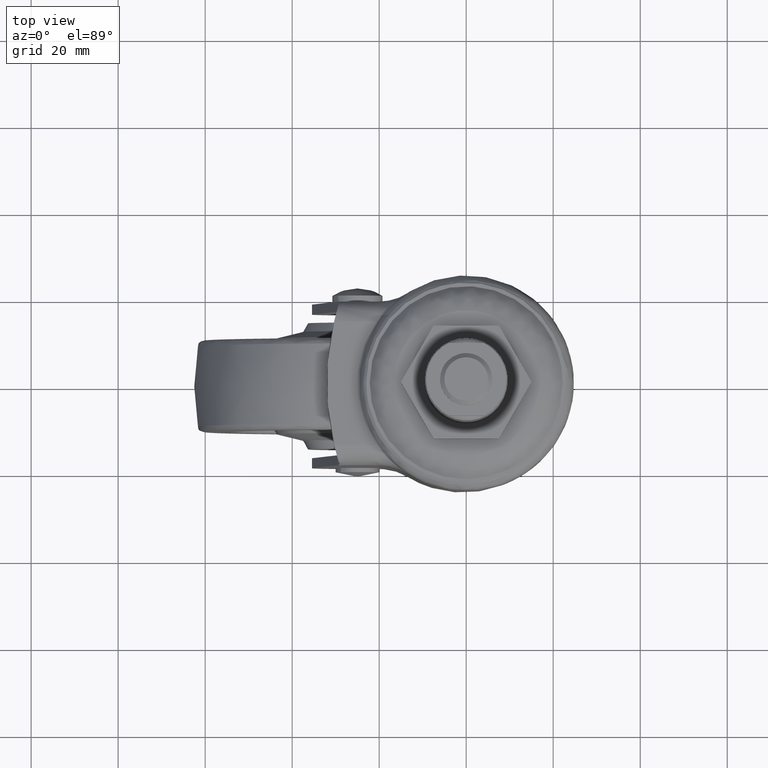
[diagram: clean part render]
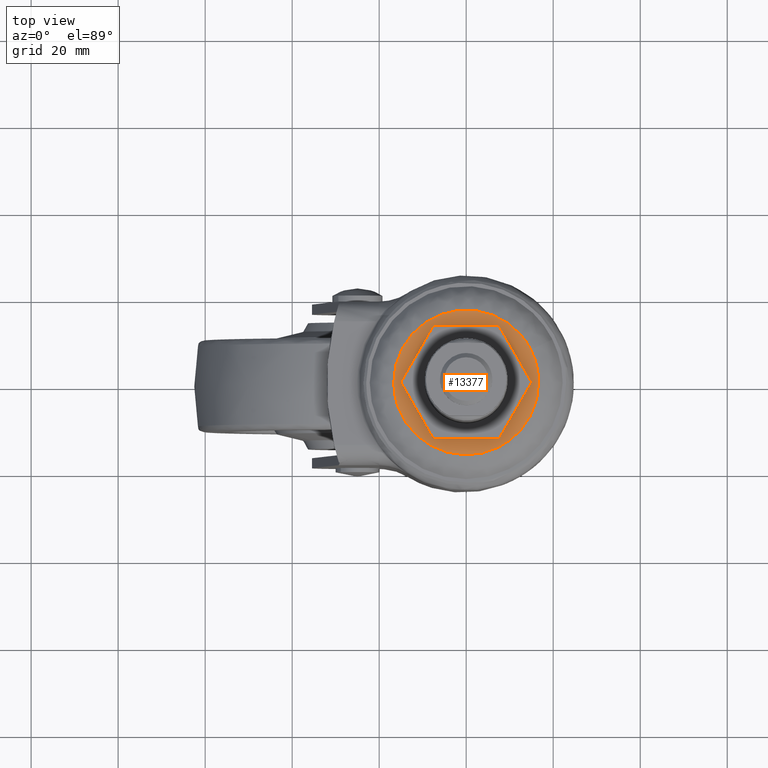
[diagram: same view with one face highlighted and labeled with its STEP entity id]
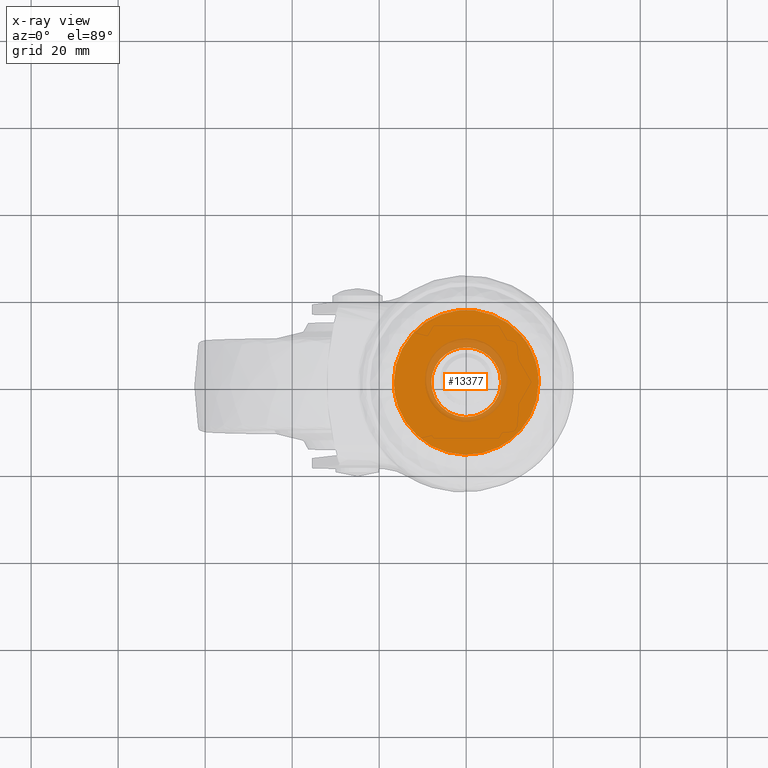
[diagram: x-ray of the same camera — body ghosted, the highlighted face saturated]
A machine part, top view. The second image highlights one B-rep face of the part: STEP entity #13377.
The next image is the same camera in x-ray: the body ghosted, the highlighted face saturated — about 13% of this face is hidden behind the body in this view.
In plain terms, the highlighted face is a freeform B-spline surface patch.
Its self-contained STEP definition (entity closure, byte-faithful):
#5943=CARTESIAN_POINT('',(5.165985005311550,-6.108502627930277,-1.999673999999895));
#5944=VERTEX_POINT('',#5943);
#5950=CARTESIAN_POINT('',(8.000075000000091,0.0,-1.999673999999895));
#5951=VERTEX_POINT('',#5950);
#5952=CARTESIAN_POINT('',(5.165985005311550,-6.108502627930277,-1.999673999999895));
#5953=CARTESIAN_POINT('',(5.802063333816039,-5.571144603495037,-1.999673999999893));
#5954=CARTESIAN_POINT('',(6.640083577364876,-4.600404735287971,-1.999673999999902));
#5955=CARTESIAN_POINT('',(7.354350466399572,-3.211487389648535,-1.999673999999890));
#5956=CARTESIAN_POINT('',(7.849291247781828,-1.809891773345544,-1.999673999999903));
#5957=CARTESIAN_POINT('',(8.000387689239524,-0.760253700055411,-1.999673999999890));
#5958=CARTESIAN_POINT('',(8.000075000000091,0.0,-1.999673999999895));
#5959=B_SPLINE_CURVE_WITH_KNOTS('',3,(#5952,#5953,#5954,#5955,#5956,#5957,#5958),.UNSPECIFIED.,.F.,.U.,(4,1,1,1,4),(0.000000038263013,2.497858925806447,3.801047734723142,4.669886506162069,6.950531590722099),.UNSPECIFIED.);
#5960=EDGE_CURVE('',#5944,#5951,#5959,.T.);
#5962=CARTESIAN_POINT('',(-0.000001375303884,8.000074999999974,-1.999673999999895));
#5963=VERTEX_POINT('',#5962);
#5964=CARTESIAN_POINT('',(8.000075000000091,0.0,-1.999673999999895));
#5965=CARTESIAN_POINT('',(8.000171130375703,0.589057846554607,-1.999673999999894));
#5966=CARTESIAN_POINT('',(7.883859322220361,1.636211634651159,-1.999673999999899));
#5967=CARTESIAN_POINT('',(7.348364074224894,3.327190721663595,-1.999673999999894));
#5968=CARTESIAN_POINT('',(6.450430262706275,4.867930351937646,-1.999673999999895));
#5969=CARTESIAN_POINT('',(5.277553636888506,6.069630629138906,-1.999673999999894));
#5970=CARTESIAN_POINT('',(4.049340631640080,6.945980750581210,-1.999673999999896));
#5971=CARTESIAN_POINT('',(2.952028640774533,7.473238483574030,-1.999673999999894));
#5972=CARTESIAN_POINT('',(1.538023045742504,7.892672013094638,-1.999673999999896));
#5973=CARTESIAN_POINT('',(0.621792185011902,8.000227632885485,-1.999673999999897));
#5974=CARTESIAN_POINT('',(-0.000001375303884,8.000074999999974,-1.999673999999895));
#5975=B_SPLINE_CURVE_WITH_KNOTS('',3,(#5964,#5965,#5966,#5967,#5968,#5969,#5970,#5971,#5972,#5973,#5974),.UNSPECIFIED.,.F.,.U.,(4,1,1,1,1,1,1,1,4),(0.000000129361204,1.767167869227734,3.141642900196846,5.301558444038050,7.068690274072943,8.148629056418496,9.817638335219833,10.701223084504379,12.566568048619841),.UNSPECIFIED.);
#5976=EDGE_CURVE('',#5951,#5963,#5975,.T.);
#5978=CARTESIAN_POINT('',(-8.000075000000091,0.0,-1.999673999999895));
#5979=VERTEX_POINT('',#5978);
#5980=CARTESIAN_POINT('',(-0.000001375303884,8.000074999999974,-1.999673999999895));
#5981=CARTESIAN_POINT('',(-0.490876004971511,8.000117267505194,-1.999673999999891));
#5982=CARTESIAN_POINT('',(-1.538066414423781,7.903404436823101,-1.999673999999905));
#5983=CARTESIAN_POINT('',(-3.241610603835852,7.398298032588091,-1.999673999999887));
#5984=CARTESIAN_POINT('',(-4.753751015877379,6.516910101511018,-1.999673999999899));
#5985=CARTESIAN_POINT('',(-6.125418436734850,5.242561441249048,-1.999673999999895));
#5986=CARTESIAN_POINT('',(-7.161477064312384,3.752495941708268,-1.999673999999895));
#5987=CARTESIAN_POINT('',(-7.850556596284996,1.898027610456960,-1.999673999999893));
#5988=CARTESIAN_POINT('',(-8.000203012892976,0.621784788949303,-1.999673999999897));
#5989=CARTESIAN_POINT('',(-8.000075000000091,0.0,-1.999673999999895));
#5990=B_SPLINE_CURVE_WITH_KNOTS('',3,(#5980,#5981,#5982,#5983,#5984,#5985,#5986,#5987,#5988,#5989),.UNSPECIFIED.,.F.,.U.,(4,1,1,1,1,1,1,4),(0.000000129840116,1.472633212438655,3.141642513036789,5.301557790458134,6.675988261673551,8.737678758053862,10.701221763743840,12.566566498322111),.UNSPECIFIED.);
#5991=EDGE_CURVE('',#5963,#5979,#5990,.T.);
#5993=CARTESIAN_POINT('',(-5.803049049211932,-5.506888072617745,-1.999673999999895));
#5994=VERTEX_POINT('',#5993);
#5995=CARTESIAN_POINT('',(-8.000075000000091,0.0,-1.999673999999895));
#5996=CARTESIAN_POINT('',(-8.000196325002094,-0.601065723515738,-1.999673999999893));
#5997=CARTESIAN_POINT('',(-7.874696705966300,-1.708212281931184,-1.999673999999899));
#5998=CARTESIAN_POINT('',(-7.414461634043668,-3.095612715097273,-1.999673999999895));
#5999=CARTESIAN_POINT('',(-6.755112702953381,-4.360686417927250,-1.999673999999894));
#6000=CARTESIAN_POINT('',(-6.195092084067479,-5.093909806031475,-1.999673999999899));
#6001=CARTESIAN_POINT('',(-5.803049049211932,-5.506888072617745,-1.999673999999895));
#6002=B_SPLINE_CURVE_WITH_KNOTS('',3,(#5995,#5996,#5997,#5998,#5999,#6000,#6001),.UNSPECIFIED.,.F.,.U.,(4,1,1,1,4),(0.000000031786908,1.803175023101227,3.321619019476356,4.365570646427946,6.073838326146219),.UNSPECIFIED.);
#6003=EDGE_CURVE('',#5979,#5994,#6002,.T.);
#6109=CARTESIAN_POINT('',(0.000001375303744,-8.000074999999972,-1.999673999999895));
#6110=VERTEX_POINT('',#6109);
#6111=CARTESIAN_POINT('',(-5.803049049211932,-5.506888072617745,-1.999673999999895));
#6112=CARTESIAN_POINT('',(-5.337634813026108,-5.997630133745893,-1.999673999999896));
#6113=CARTESIAN_POINT('',(-4.413291724669198,-6.751964170340528,-1.999673999999893));
#6114=CARTESIAN_POINT('',(-2.893545321320089,-7.510370368346030,-1.999673999999895));
#6115=CARTESIAN_POINT('',(-1.454082436151916,-7.912783256721776,-1.999673999999898));
#6116=CARTESIAN_POINT('',(-0.473425173571756,-8.000117285931061,-1.999673999999893));
#6117=CARTESIAN_POINT('',(0.000001375303744,-8.000074999999972,-1.999673999999895));
#6118=B_SPLINE_CURVE_WITH_KNOTS('',3,(#6111,#6112,#6113,#6114,#6115,#6116,#6117),.UNSPECIFIED.,.F.,.U.,(4,1,1,1,4),(0.000000038177278,2.028978529522959,3.550694049614949,5.072449240782275,6.492730315682900),.UNSPECIFIED.);
#6119=EDGE_CURVE('',#5994,#6110,#6118,.T.);
#6121=CARTESIAN_POINT('',(0.000001375303744,-8.000074999999972,-1.999673999999895));
#6122=CARTESIAN_POINT('',(0.555761241505494,-8.000167998020817,-1.999673999999887));
#6123=CARTESIAN_POINT('',(1.462481167058626,-7.905183732173049,-1.999673999999903));
#6124=CARTESIAN_POINT('',(2.760521091270947,-7.540035322927406,-1.999673999999891));
#6125=CARTESIAN_POINT('',(3.965215296289408,-6.998750377217181,-1.999673999999900));
#6126=CARTESIAN_POINT('',(4.764012328366528,-6.448541982690291,-1.999673999999883));
#6127=CARTESIAN_POINT('',(5.165985005311550,-6.108502627930277,-1.999673999999895));
#6128=B_SPLINE_CURVE_WITH_KNOTS('',3,(#6121,#6122,#6123,#6124,#6125,#6126,#6127),.UNSPECIFIED.,.F.,.U.,(4,1,1,1,4),(0.000000028270379,1.667265740962521,2.720288803800771,4.036525161955504,5.616037240781362),.UNSPECIFIED.);
#6129=EDGE_CURVE('',#6110,#5944,#6128,.T.);
#8249=CARTESIAN_POINT('',(7.464169488051621,-14.879646796466250,-1.999674000000001));
#8250=VERTEX_POINT('',#8249);
#8262=CARTESIAN_POINT('',(-16.646853000000100,0.0,-1.999674000000000));
#8263=VERTEX_POINT('',#8262);
#8264=CARTESIAN_POINT('',(7.464169488051621,-14.879646796466250,-1.999674000000001));
#8265=CARTESIAN_POINT('',(6.281028401867387,-15.473486214217051,-1.999674000000002));
#8266=CARTESIAN_POINT('',(4.399390133511711,-16.150611946194459,-1.999674000000003));
#8267=CARTESIAN_POINT('',(1.522301196110512,-16.634806394401210,-1.999673999999995));
#8268=CARTESIAN_POINT('',(-0.558275208539770,-16.683950445967479,-1.999674000000016));
#8269=CARTESIAN_POINT('',(-2.842744469446358,-16.446367957927109,-1.999673999999981));
#8270=CARTESIAN_POINT('',(-5.085572799959073,-15.928618162467290,-1.999674000000026));
#8271=CARTESIAN_POINT('',(-7.911673203492544,-14.767424414411069,-1.999673999999980));
#8272=CARTESIAN_POINT('',(-10.244135104117010,-13.223508688282839,-1.999674000000027));
#8273=CARTESIAN_POINT('',(-12.116473279684749,-11.472831765755149,-1.999673999999969));
#8274=CARTESIAN_POINT('',(-13.768430574079391,-9.511207940025779,-1.999674000000033));
#8275=CARTESIAN_POINT('',(-15.192197443576720,-7.052046922179762,-1.999673999999971));
#8276=CARTESIAN_POINT('',(-16.353034734707371,-3.706391938335754,-1.999674000000049));
#8277=CARTESIAN_POINT('',(-16.647281077156041,-1.412070753281534,-1.999673999999970));
#8278=CARTESIAN_POINT('',(-16.646853000000100,0.0,-1.999674000000000));
#8279=B_SPLINE_CURVE_WITH_KNOTS('',3,(#8264,#8265,#8266,#8267,#8268,#8269,#8270,#8271,#8272,#8273,#8274,#8275,#8276,#8277,#8278),.UNSPECIFIED.,.F.,.U.,(4,1,1,1,1,1,1,1,1,1,1,1,4),(0.000000143889956,3.971326491671213,5.957021361272297,8.736999439661833,10.193166396079070,12.840775639046710,15.620706851893740,19.327244168391179,21.180583233462730,23.298650060753189,27.005267986797289,29.652871863886599,33.888954238775980),.UNSPECIFIED.);
#8280=EDGE_CURVE('',#8250,#8263,#8279,.T.);
#8282=CARTESIAN_POINT('',(14.879646795456541,7.464169487380882,-1.999674000000001));
#8283=VERTEX_POINT('',#8282);
#8284=CARTESIAN_POINT('',(-16.646853000000100,0.0,-1.999674000000000));
#8285=CARTESIAN_POINT('',(-16.646886226717040,0.870237901041892,-1.999673999999999));
#8286=CARTESIAN_POINT('',(-16.491919812427739,2.842840945014603,-1.999674000000004));
#8287=CARTESIAN_POINT('',(-15.827210132004030,5.380905362746329,-1.999673999999989));
#8288=CARTESIAN_POINT('',(-14.870752157248040,7.563219640735198,-1.999674000000016));
#8289=CARTESIAN_POINT('',(-13.758209212223250,9.470830718631774,-1.999673999999976));
#8290=CARTESIAN_POINT('',(-12.024759801425850,11.662896243143321,-1.999674000000003));
#8291=CARTESIAN_POINT('',(-9.808184914304984,13.561253847947590,-1.999674000000061));
#8292=CARTESIAN_POINT('',(-7.500635688185713,14.914391910004330,-1.999673999999956));
#8293=CARTESIAN_POINT('',(-4.983986361426354,15.978049215348310,-1.999674000000023));
#8294=CARTESIAN_POINT('',(-1.964657868328663,16.659659639289469,-1.999674000000010));
#8295=CARTESIAN_POINT('',(0.950466912393135,16.681863604098051,-1.999673999999990));
#8296=CARTESIAN_POINT('',(3.424030486488080,16.336510297516920,-1.999674000000021));
#8297=CARTESIAN_POINT('',(5.839707888883117,15.683228399997200,-1.999673999999952));
#8298=CARTESIAN_POINT('',(8.422193461273247,14.461440960409790,-1.999674000000024));
#8299=CARTESIAN_POINT('',(10.696210331572910,12.839023556503131,-1.999673999999999));
#8300=CARTESIAN_POINT('',(12.948723737684031,10.649419104089819,-1.999674000000001));
#8301=CARTESIAN_POINT('',(14.229721801828500,8.760901610266572,-1.999673999999999));
#8302=CARTESIAN_POINT('',(14.879646795456541,7.464169487380882,-1.999674000000001));
#8303=B_SPLINE_CURVE_WITH_KNOTS('',3,(#8284,#8285,#8286,#8287,#8288,#8289,#8290,#8291,#8292,#8293,#8294,#8295,#8296,#8297,#8298,#8299,#8300,#8301,#8302),.UNSPECIFIED.,.F.,.U.,(4,1,1,1,1,1,1,1,1,1,1,1,1,1,1,1,4),(0.000000027961832,2.610733674667358,5.917785690837008,7.832401889273797,9.747015776034992,12.531887840621939,16.187011692284241,18.449728581801569,20.538409213893349,24.367466595000959,27.674548043015850,29.241039963048699,31.851844320082201,35.158882300460093,37.769723343511899,40.206473019157443,44.557784641251423),.UNSPECIFIED.);
#8304=EDGE_CURVE('',#8263,#8283,#8303,.T.);
#8388=CARTESIAN_POINT('',(16.646853000000100,0.0,-1.999674000000000));
#8389=VERTEX_POINT('',#8388);
#8390=CARTESIAN_POINT('',(14.879646795456541,7.464169487380882,-1.999674000000001));
#8391=CARTESIAN_POINT('',(15.313543717760830,6.599407347728249,-1.999673999999996));
#8392=CARTESIAN_POINT('',(15.910441002543060,5.094847367429257,-1.999674000000005));
#8393=CARTESIAN_POINT('',(16.505859971936871,2.579988049327645,-1.999673999999998));
#8394=CARTESIAN_POINT('',(16.646933760137252,0.967512424238850,-1.999674000000002));
#8395=CARTESIAN_POINT('',(16.646853000000100,0.0,-1.999674000000000));
#8396=B_SPLINE_CURVE_WITH_KNOTS('',3,(#8390,#8391,#8392,#8393,#8394,#8395),.UNSPECIFIED.,.F.,.U.,(4,1,1,4),(8.560963E-009,2.902525051724068,4.837541379961181,7.740066423124514),.UNSPECIFIED.);
#8397=EDGE_CURVE('',#8283,#8389,#8396,.T.);
#8399=CARTESIAN_POINT('',(16.646853000000100,0.0,-1.999674000000000));
#8400=CARTESIAN_POINT('',(16.646922377907330,-0.910854990037257,-1.999673999999999));
#8401=CARTESIAN_POINT('',(16.504840488450430,-2.636652969643841,-1.999673999999998));
#8402=CARTESIAN_POINT('',(15.871347282226660,-5.252912827125272,-1.999674000000001));
#8403=CARTESIAN_POINT('',(14.716811614856240,-8.003820273323873,-1.999674000000008));
#8404=CARTESIAN_POINT('',(12.860818193818719,-10.765230726967999,-1.999673999999976));
#8405=CARTESIAN_POINT('',(10.362951840101211,-13.174220153916590,-1.999674000000028));
#8406=CARTESIAN_POINT('',(8.449777451341676,-14.385349519707120,-1.999673999999978));
#8407=CARTESIAN_POINT('',(7.464169488051621,-14.879646796466250,-1.999674000000001));
#8408=B_SPLINE_CURVE_WITH_KNOTS('',3,(#8399,#8400,#8401,#8402,#8403,#8404,#8405,#8406,#8407),.UNSPECIFIED.,.F.,.U.,(4,1,1,1,1,1,4),(0.000000048509065,2.732559396774075,5.177486652162823,8.053868809126916,11.649314750977309,15.100991131882701,18.408823393493851),.UNSPECIFIED.);
#8409=EDGE_CURVE('',#8389,#8250,#8408,.T.);
#13358=CARTESIAN_POINT('',(-18.309873118684450,-18.308441780793022,-1.999673999999945));
#13359=CARTESIAN_POINT('',(18.309871928008739,-18.308441780793022,-1.999673999999945));
#13360=CARTESIAN_POINT('',(-18.309873118684450,18.298982533172069,-1.999673999999945));
#13361=CARTESIAN_POINT('',(18.309871928008739,18.298982533172069,-1.999673999999945));
#13362=B_SPLINE_SURFACE_WITH_KNOTS('',1,1,((#13358,#13360),(#13359,#13361)),.UNSPECIFIED.,.F.,.F.,.U.,(2,2),(2,2),(0.0,36.619745046693190),(0.0,36.607424313965083),.UNSPECIFIED.);
#13363=ORIENTED_EDGE('',*,*,#8280,.F.);
#13364=ORIENTED_EDGE('',*,*,#8409,.F.);
#13365=ORIENTED_EDGE('',*,*,#8397,.F.);
#13366=ORIENTED_EDGE('',*,*,#8304,.F.);
#13367=EDGE_LOOP('',(#13363,#13364,#13365,#13366));
#13368=FACE_OUTER_BOUND('',#13367,.T.);
#13369=ORIENTED_EDGE('',*,*,#5976,.F.);
#13370=ORIENTED_EDGE('',*,*,#5960,.F.);
#13371=ORIENTED_EDGE('',*,*,#6129,.F.);
#13372=ORIENTED_EDGE('',*,*,#6119,.F.);
#13373=ORIENTED_EDGE('',*,*,#6003,.F.);
#13374=ORIENTED_EDGE('',*,*,#5991,.F.);
#13375=EDGE_LOOP('',(#13369,#13370,#13371,#13372,#13373,#13374));
#13376=FACE_BOUND('',#13375,.T.);
#13377=ADVANCED_FACE('',(#13368,#13376),#13362,.T.);